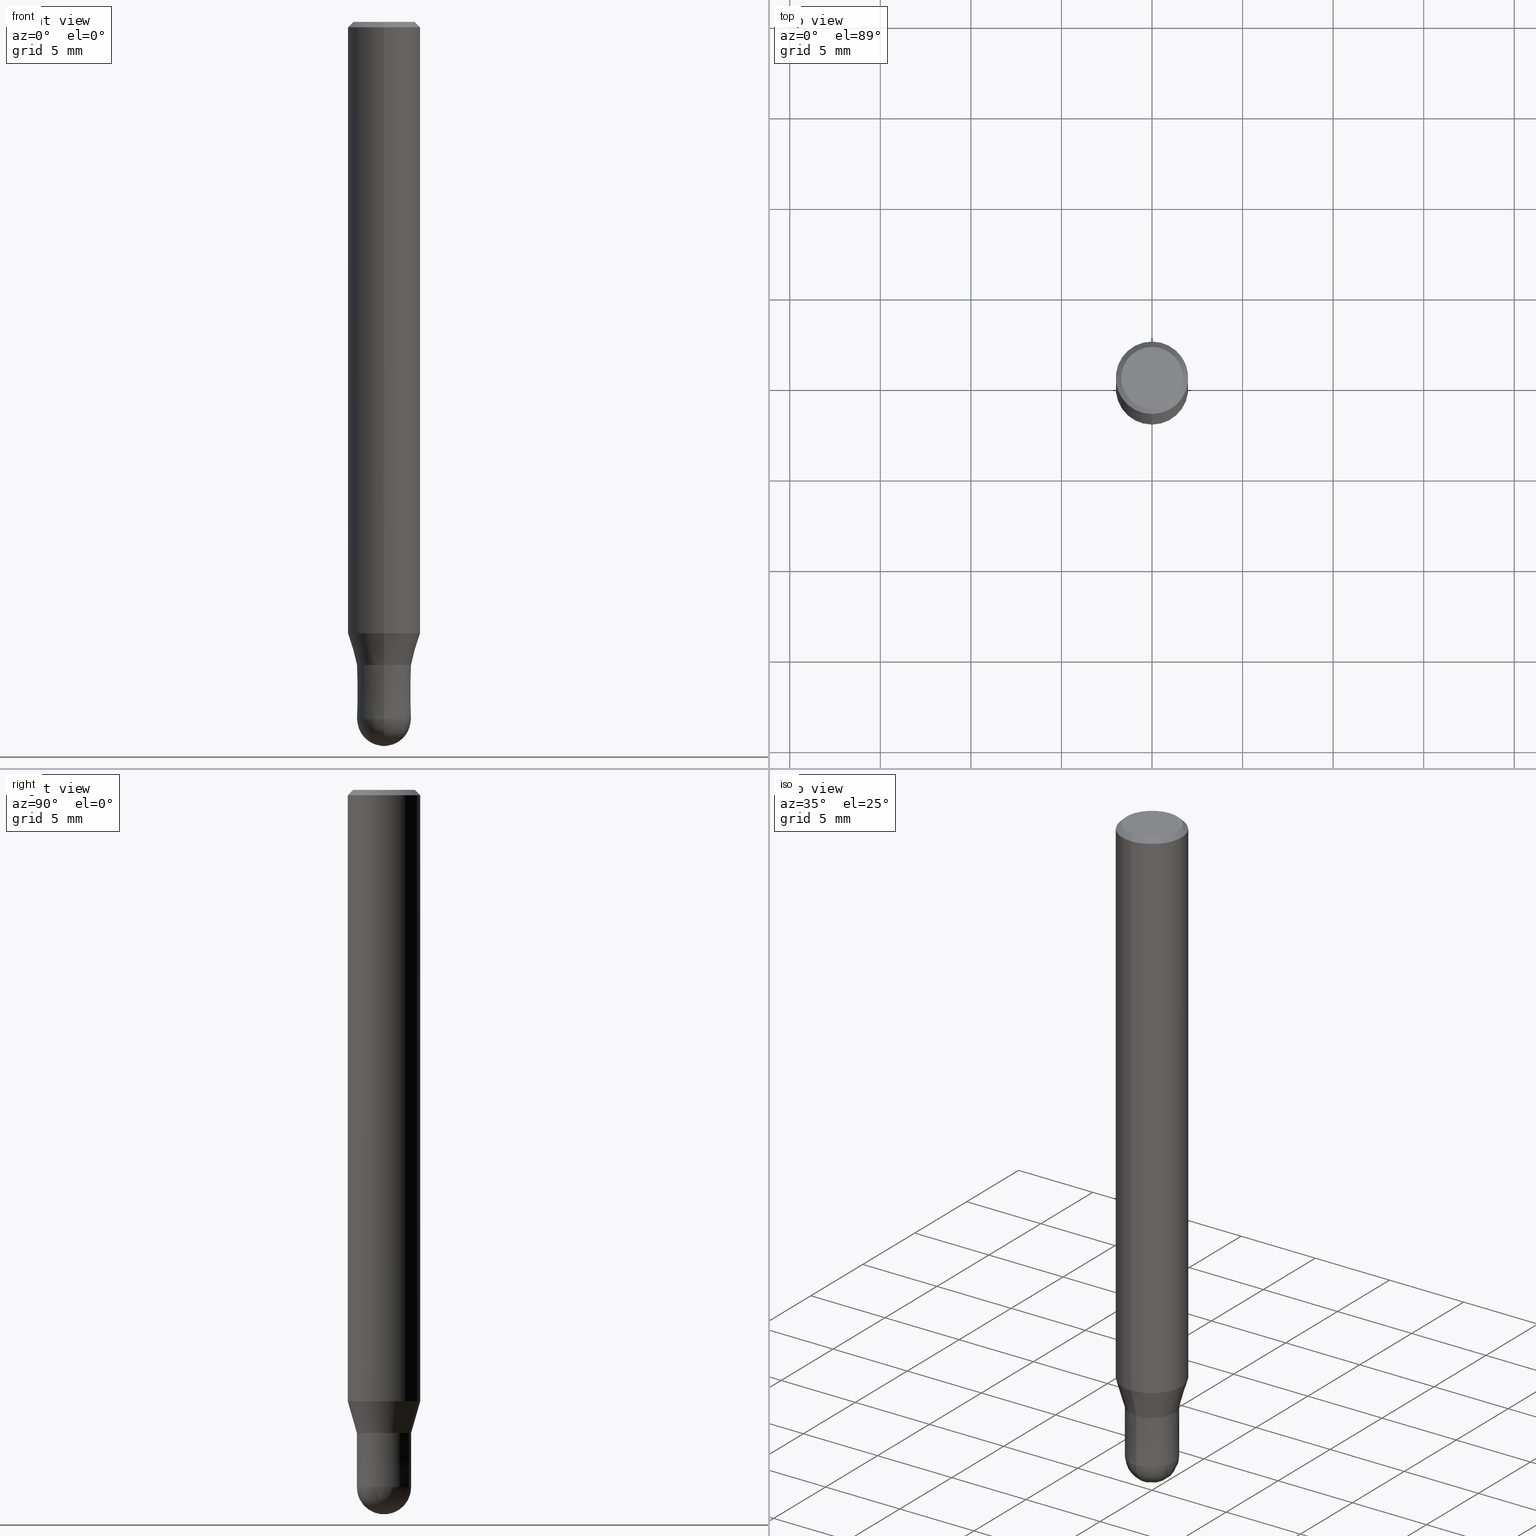
[diagram: canonical four-view strip — front | top / right | iso, engineering-drawing reading convention]
A machine part, canonical four-view strip (front | top / right | iso — engineering-drawing reading convention). The complete STEP part file that produces these views, byte-faithful:
ISO-10303-21;
HEADER;
FILE_DESCRIPTION(('no description'),'unknown implementation level');
FILE_NAME('HFB4030-0450S-Huellk.stp','  ',('CIMSOURCE GmbH'),('CADClick - KiM GmbH - www.kimweb.de'),'unknown preprocess','ACIS','unknown authorization');
FILE_SCHEMA(('automotive_design'));
ENDSEC;
DATA;
#1=MECHANICAL_DESIGN_GEOMETRIC_PRESENTATION_REPRESENTATION(' ',(#14,#15,#16,#17,#18,#19,#20,#21,#22,#23,#24,#25,#26,#27,#28,#29,#30,#31,#32,#33,#34,#35,#36,#37,#38,#39,#40,#41,#42,#43,#44,#45,#46,#47,#48,#49,#50,#51,#52,#53,#54,#55,#56,#57,#58,#59,#60,#61,#62,#63,#64,#65,#66),#10);
#2=PRODUCT_DEFINITION_CONTEXT('',#67,'design');
#3=APPLICATION_PROTOCOL_DEFINITION('INTERNATIONAL STANDARD','automotive_design',1994,#67);
#4=PRODUCT_CATEGORY_RELATIONSHIP('NONE','NONE',#68,#69);
#5=SHAPE_DEFINITION_REPRESENTATION(#70,#71);
#6=PRODUCT_DEFINITION_CONTEXT('',#72,'design');
#7=APPLICATION_PROTOCOL_DEFINITION('INTERNATIONAL STANDARD','automotive_design',1994,#72);
#8=PRODUCT_CATEGORY_RELATIONSHIP('NONE','NONE',#73,#74);
#9=SHAPE_DEFINITION_REPRESENTATION(#75,#76);
#10= (GEOMETRIC_REPRESENTATION_CONTEXT(3)GLOBAL_UNCERTAINTY_ASSIGNED_CONTEXT((#79))GLOBAL_UNIT_ASSIGNED_CONTEXT((#81,#82,#83))REPRESENTATION_CONTEXT('NONE','WORKSPACE'));
#14=STYLED_ITEM('',(#85),#86);
#15=STYLED_ITEM('',(#87),#88);
#16=STYLED_ITEM('',(#89),#90);
#17=STYLED_ITEM('',(#91),#92);
#18=STYLED_ITEM('',(#93),#94);
#19=STYLED_ITEM('',(#95),#96);
#20=STYLED_ITEM('',(#97),#98);
#21=STYLED_ITEM('',(#99),#100);
#22=STYLED_ITEM('',(#101),#102);
#23=STYLED_ITEM('',(#103),#104);
#24=STYLED_ITEM('',(#105),#106);
#25=STYLED_ITEM('',(#107),#108);
#26=STYLED_ITEM('',(#109),#110);
#27=STYLED_ITEM('',(#111),#112);
#28=STYLED_ITEM('',(#113),#114);
#29=STYLED_ITEM('',(#115),#116);
#30=STYLED_ITEM('',(#117),#118);
#31=STYLED_ITEM('',(#119),#120);
#32=STYLED_ITEM('',(#121),#122);
#33=STYLED_ITEM('',(#123),#124);
#34=STYLED_ITEM('',(#125),#126);
#35=STYLED_ITEM('',(#127),#128);
#36=STYLED_ITEM('',(#129),#130);
#37=STYLED_ITEM('',(#131),#132);
#38=STYLED_ITEM('',(#133),#134);
#39=STYLED_ITEM('',(#135),#136);
#40=STYLED_ITEM('',(#137),#138);
#41=STYLED_ITEM('',(#139),#140);
#42=STYLED_ITEM('',(#141),#142);
#43=STYLED_ITEM('',(#143),#144);
#44=STYLED_ITEM('',(#145),#146);
#45=STYLED_ITEM('',(#147),#148);
#46=STYLED_ITEM('',(#149),#150);
#47=STYLED_ITEM('',(#151),#152);
#48=STYLED_ITEM('',(#153),#154);
#49=STYLED_ITEM('',(#155),#156);
#50=STYLED_ITEM('',(#157),#158);
#51=STYLED_ITEM('',(#159),#160);
#52=STYLED_ITEM('',(#161),#162);
#53=STYLED_ITEM('',(#163),#164);
#54=STYLED_ITEM('',(#165),#166);
#55=STYLED_ITEM('',(#167),#168);
#56=STYLED_ITEM('',(#169),#170);
#57=STYLED_ITEM('',(#171),#172);
#58=STYLED_ITEM('',(#173),#174);
#59=STYLED_ITEM('',(#175),#176);
#60=STYLED_ITEM('',(#177),#178);
#61=STYLED_ITEM('',(#179),#180);
#62=STYLED_ITEM('',(#181),#182);
#63=STYLED_ITEM('',(#183),#184);
#64=STYLED_ITEM('',(#185),#186);
#65=STYLED_ITEM('',(#187),#188);
#66=STYLED_ITEM('',(#189),#190);
#67=APPLICATION_CONTEXT(' ');
#68=PRODUCT_CATEGORY('part','NONE');
#69=PRODUCT_RELATED_PRODUCT_CATEGORY('detail',' ',(#191));
#70=PRODUCT_DEFINITION_SHAPE('NONE','NONE',#192);
#71=ADVANCED_BREP_SHAPE_REPRESENTATION('1',(#144,#193),#10);
#72=APPLICATION_CONTEXT(' ');
#73=PRODUCT_CATEGORY('part','NONE');
#74=PRODUCT_RELATED_PRODUCT_CATEGORY('detail',' ',(#194));
#75=PRODUCT_DEFINITION_SHAPE('NONE','NONE',#195);
#76=ADVANCED_BREP_SHAPE_REPRESENTATION('2',(#166,#196),#10);
#79=UNCERTAINTY_MEASURE_WITH_UNIT(LENGTH_MEASURE(1.0E-006),#81,'','');
#81= (CONVERSION_BASED_UNIT('MILLIMETRE',#199)LENGTH_UNIT()NAMED_UNIT(#202));
#82= (NAMED_UNIT(#204)PLANE_ANGLE_UNIT()SI_UNIT($,.RADIAN.));
#83= (NAMED_UNIT(#204)SOLID_ANGLE_UNIT()SI_UNIT($,.STERADIAN.));
#85=PRESENTATION_STYLE_ASSIGNMENT((#210));
#86=EDGE_CURVE('',#94,#186,#211,.T.);
#87=PRESENTATION_STYLE_ASSIGNMENT((#212));
#88=VERTEX_POINT('',#213);
#89=PRESENTATION_STYLE_ASSIGNMENT((#214));
#90=EDGE_CURVE('',#148,#98,#215,.T.);
#91=PRESENTATION_STYLE_ASSIGNMENT((#216));
#92=VERTEX_POINT('',#217);
#93=PRESENTATION_STYLE_ASSIGNMENT((#218));
#94=VERTEX_POINT('',#219);
#95=PRESENTATION_STYLE_ASSIGNMENT((#220));
#96=VERTEX_POINT('',#221);
#97=PRESENTATION_STYLE_ASSIGNMENT((#222));
#98=VERTEX_POINT('',#223);
#99=PRESENTATION_STYLE_ASSIGNMENT((#224));
#100=EDGE_CURVE('',#92,#156,#225,.T.);
#101=PRESENTATION_STYLE_ASSIGNMENT((#226));
#102=ADVANCED_FACE('',(#227),#228,.T.);
#103=PRESENTATION_STYLE_ASSIGNMENT((#229));
#104=ADVANCED_FACE('',(#230),#231,.T.);
#105=PRESENTATION_STYLE_ASSIGNMENT((#232));
#106=ADVANCED_FACE('',(#233),#234,.T.);
#107=PRESENTATION_STYLE_ASSIGNMENT((#235));
#108=EDGE_CURVE('',#88,#138,#236,.T.);
#109=PRESENTATION_STYLE_ASSIGNMENT((#237));
#110=ADVANCED_FACE('',(#238),#239,.T.);
#111=PRESENTATION_STYLE_ASSIGNMENT((#240));
#112=EDGE_CURVE('',#154,#150,#241,.T.);
#113=PRESENTATION_STYLE_ASSIGNMENT((#242));
#114=EDGE_CURVE('',#98,#154,#243,.T.);
#115=PRESENTATION_STYLE_ASSIGNMENT((#244));
#116=ADVANCED_FACE('',(#245),#246,.T.);
#117=PRESENTATION_STYLE_ASSIGNMENT((#247));
#118=EDGE_CURVE('',#88,#138,#248,.T.);
#119=PRESENTATION_STYLE_ASSIGNMENT((#249));
#120=EDGE_CURVE('',#158,#138,#250,.T.);
#121=PRESENTATION_STYLE_ASSIGNMENT((#251));
#122=EDGE_CURVE('',#190,#158,#252,.T.);
#123=PRESENTATION_STYLE_ASSIGNMENT((#253));
#124=EDGE_CURVE('',#126,#94,#254,.T.);
#125=PRESENTATION_STYLE_ASSIGNMENT((#255));
#126=VERTEX_POINT('',#256);
#127=PRESENTATION_STYLE_ASSIGNMENT((#257));
#128=ADVANCED_FACE('',(#258),#259,.T.);
#129=PRESENTATION_STYLE_ASSIGNMENT((#260));
#130=EDGE_CURVE('',#186,#94,#261,.T.);
#131=PRESENTATION_STYLE_ASSIGNMENT((#262));
#132=EDGE_CURVE('',#96,#156,#263,.T.);
#133=PRESENTATION_STYLE_ASSIGNMENT((#264));
#134=EDGE_CURVE('',#156,#92,#265,.T.);
#135=PRESENTATION_STYLE_ASSIGNMENT((#266));
#136=ADVANCED_FACE('',(#267),#268,.T.);
#137=PRESENTATION_STYLE_ASSIGNMENT((#269));
#138=VERTEX_POINT('',#270);
#139=PRESENTATION_STYLE_ASSIGNMENT((#271));
#140=ADVANCED_FACE('',(#272),#273,.T.);
#141=PRESENTATION_STYLE_ASSIGNMENT((#274));
#142=ADVANCED_FACE('',(#275),#276,.T.);
#143=PRESENTATION_STYLE_ASSIGNMENT((#277));
#144=MANIFOLD_SOLID_BREP('1',#278);
#145=PRESENTATION_STYLE_ASSIGNMENT((#279));
#146=ADVANCED_FACE('',(#280),#281,.T.);
#147=PRESENTATION_STYLE_ASSIGNMENT((#282));
#148=VERTEX_POINT('',#283);
#149=PRESENTATION_STYLE_ASSIGNMENT((#284));
#150=VERTEX_POINT('',#285);
#151=PRESENTATION_STYLE_ASSIGNMENT((#286));
#152=ADVANCED_FACE('',(#287,#288),#289,.T.);
#153=PRESENTATION_STYLE_ASSIGNMENT((#290));
#154=VERTEX_POINT('',#291);
#155=PRESENTATION_STYLE_ASSIGNMENT((#292));
#156=VERTEX_POINT('',#293);
#157=PRESENTATION_STYLE_ASSIGNMENT((#294));
#158=VERTEX_POINT('',#295);
#159=PRESENTATION_STYLE_ASSIGNMENT((#296));
#160=EDGE_CURVE('',#138,#88,#297,.T.);
#161=PRESENTATION_STYLE_ASSIGNMENT((#298));
#162=EDGE_CURVE('',#96,#126,#299,.T.);
#163=PRESENTATION_STYLE_ASSIGNMENT((#300));
#164=EDGE_CURVE('',#186,#96,#301,.T.);
#165=PRESENTATION_STYLE_ASSIGNMENT((#302));
#166=MANIFOLD_SOLID_BREP('2',#303);
#167=PRESENTATION_STYLE_ASSIGNMENT((#304));
#168=EDGE_CURVE('',#92,#126,#305,.T.);
#169=PRESENTATION_STYLE_ASSIGNMENT((#306));
#170=ADVANCED_FACE('',(#307),#308,.T.);
#171=PRESENTATION_STYLE_ASSIGNMENT((#309));
#172=ADVANCED_FACE('',(#310),#311,.T.);
#173=PRESENTATION_STYLE_ASSIGNMENT((#312));
#174=EDGE_CURVE('',#158,#190,#313,.T.);
#175=PRESENTATION_STYLE_ASSIGNMENT((#314));
#176=EDGE_CURVE('',#150,#148,#315,.T.);
#177=PRESENTATION_STYLE_ASSIGNMENT((#316));
#178=ADVANCED_FACE('',(#317),#318,.T.);
#179=PRESENTATION_STYLE_ASSIGNMENT((#319));
#180=EDGE_CURVE('',#88,#190,#320,.T.);
#181=PRESENTATION_STYLE_ASSIGNMENT((#321));
#182=EDGE_CURVE('',#154,#98,#322,.T.);
#183=PRESENTATION_STYLE_ASSIGNMENT((#323));
#184=EDGE_CURVE('',#148,#150,#324,.T.);
#185=PRESENTATION_STYLE_ASSIGNMENT((#325));
#186=VERTEX_POINT('',#326);
#187=PRESENTATION_STYLE_ASSIGNMENT((#327));
#188=EDGE_CURVE('',#126,#96,#328,.T.);
#189=PRESENTATION_STYLE_ASSIGNMENT((#329));
#190=VERTEX_POINT('',#330);
#191=PRODUCT('1','1','PART-1-DESC',(#331));
#192=PRODUCT_DEFINITION('NONE','NONE',#332,#2);
#193=AXIS2_PLACEMENT_3D('',#333,#334,#335);
#194=PRODUCT('2','2','PART-2-DESC',(#336));
#195=PRODUCT_DEFINITION('NONE','NONE',#337,#6);
#196=AXIS2_PLACEMENT_3D('',#338,#339,#340);
#199=LENGTH_MEASURE_WITH_UNIT(LENGTH_MEASURE(1.0),#341);
#202=DIMENSIONAL_EXPONENTS(1.0,0.0,0.0,0.0,0.0,0.0,0.0);
#204=DIMENSIONAL_EXPONENTS(0.0,0.0,0.0,0.0,0.0,0.0,0.0);
#210=CURVE_STYLE('',#342,POSITIVE_LENGTH_MEASURE(1.0E-006),#343);
#211=CIRCLE('',#344,1.7);
#212=POINT_STYLE(' ',#345,POSITIVE_LENGTH_MEASURE(1.0E-006),#346);
#213=CARTESIAN_POINT('',(1.83690953073357E-016,-1.5,-38.5));
#214=CURVE_STYLE('',#347,POSITIVE_LENGTH_MEASURE(1.0E-006),#348);
#215=LINE('',#349,#350);
#216=POINT_STYLE(' ',#351,POSITIVE_LENGTH_MEASURE(1.0E-006),#352);
#217=CARTESIAN_POINT('',(2.44921270764475E-016,-2.0,-33.756));
#218=POINT_STYLE(' ',#353,POSITIVE_LENGTH_MEASURE(1.0E-006),#354);
#219=CARTESIAN_POINT('',(2.08183080149804E-016,-1.7,0.0));
#220=POINT_STYLE(' ',#355,POSITIVE_LENGTH_MEASURE(1.0E-006),#356);
#221=CARTESIAN_POINT('',(0.0,2.0,-0.299999999999997));
#222=POINT_STYLE(' ',#357,POSITIVE_LENGTH_MEASURE(1.0E-006),#358);
#223=CARTESIAN_POINT('',(0.0,1.49995,-35.5));
#224=CURVE_STYLE('',#359,POSITIVE_LENGTH_MEASURE(1.0E-006),#360);
#225=CIRCLE('',#361,2.0);
#226=SURFACE_STYLE_USAGE(.BOTH.,#362);
#227=FACE_OUTER_BOUND('',#363,.T.);
#228=SPHERICAL_SURFACE('',#364,1.5);
#229=SURFACE_STYLE_USAGE(.BOTH.,#365);
#230=FACE_OUTER_BOUND('',#366,.T.);
#231=CONICAL_SURFACE('',#367,1.74995,0.279208199033747);
#232=SURFACE_STYLE_USAGE(.BOTH.,#368);
#233=FACE_OUTER_BOUND('',#369,.T.);
#234=PLANE('',#370);
#235=CURVE_STYLE('',#371,POSITIVE_LENGTH_MEASURE(1.0E-006),#372);
#236=CIRCLE('',#373,1.5);
#237=SURFACE_STYLE_USAGE(.BOTH.,#374);
#238=FACE_OUTER_BOUND('',#375,.T.);
#239=CONICAL_SURFACE('',#376,1.49995,3.3333333321058E-005);
#240=CURVE_STYLE('',#377,POSITIVE_LENGTH_MEASURE(1.0E-006),#378);
#241=LINE('',#379,#380);
#242=CURVE_STYLE('',#381,POSITIVE_LENGTH_MEASURE(1.0E-006),#382);
#243=CIRCLE('',#383,1.49995);
#244=SURFACE_STYLE_USAGE(.BOTH.,#384);
#245=FACE_OUTER_BOUND('',#385,.T.);
#246=CONICAL_SURFACE('',#386,1.74995,0.279208199033747);
#247=CURVE_STYLE('',#387,POSITIVE_LENGTH_MEASURE(1.0E-006),#388);
#248=CIRCLE('',#389,1.5);
#249=CURVE_STYLE('',#390,POSITIVE_LENGTH_MEASURE(1.0E-006),#391);
#250=LINE('',#392,#393);
#251=CURVE_STYLE('',#394,POSITIVE_LENGTH_MEASURE(1.0E-006),#395);
#252=CIRCLE('',#396,1.4999);
#253=CURVE_STYLE('',#397,POSITIVE_LENGTH_MEASURE(1.0E-006),#398);
#254=LINE('',#399,#400);
#255=POINT_STYLE(' ',#401,POSITIVE_LENGTH_MEASURE(1.0E-006),#402);
#256=CARTESIAN_POINT('',(2.44921270764475E-016,-2.0,-0.299999999999997));
#257=SURFACE_STYLE_USAGE(.BOTH.,#403);
#258=FACE_OUTER_BOUND('',#404,.T.);
#259=SPHERICAL_SURFACE('',#405,1.5);
#260=CURVE_STYLE('',#406,POSITIVE_LENGTH_MEASURE(1.0E-006),#407);
#261=CIRCLE('',#408,1.7);
#262=CURVE_STYLE('',#409,POSITIVE_LENGTH_MEASURE(1.0E-006),#410);
#263=LINE('',#411,#412);
#264=CURVE_STYLE('',#413,POSITIVE_LENGTH_MEASURE(1.0E-006),#414);
#265=CIRCLE('',#415,2.0);
#266=SURFACE_STYLE_USAGE(.BOTH.,#416);
#267=FACE_OUTER_BOUND('',#417,.T.);
#268=PLANE('',#418);
#269=POINT_STYLE(' ',#419,POSITIVE_LENGTH_MEASURE(1.0E-006),#420);
#270=CARTESIAN_POINT('',(0.0,1.5,-38.5));
#271=SURFACE_STYLE_USAGE(.BOTH.,#421);
#272=FACE_OUTER_BOUND('',#422,.T.);
#273=CYLINDRICAL_SURFACE('',#423,2.0);
#274=SURFACE_STYLE_USAGE(.BOTH.,#424);
#275=FACE_OUTER_BOUND('',#425,.T.);
#276=CYLINDRICAL_SURFACE('',#426,2.0);
#277=SURFACE_STYLE_USAGE(.BOTH.,#427);
#278=CLOSED_SHELL('',(#104,#140,#170,#152,#106,#172,#142,#116,#136));
#279=SURFACE_STYLE_USAGE(.BOTH.,#428);
#280=FACE_OUTER_BOUND('',#429,.T.);
#281=PLANE('',#430);
#282=POINT_STYLE(' ',#431,POSITIVE_LENGTH_MEASURE(1.0E-006),#432);
#283=CARTESIAN_POINT('',(0.0,1.99995,-33.756));
#284=POINT_STYLE(' ',#433,POSITIVE_LENGTH_MEASURE(1.0E-006),#434);
#285=CARTESIAN_POINT('',(2.44915147732706E-016,-1.99995,-33.756));
#286=SURFACE_STYLE_USAGE(.BOTH.,#435);
#287=FACE_OUTER_BOUND('',#436,.T.);
#288=FACE_BOUND('',#437,.T.);
#289=PLANE('',#438);
#290=POINT_STYLE(' ',#439,POSITIVE_LENGTH_MEASURE(1.0E-006),#440);
#291=CARTESIAN_POINT('',(1.83684830041587E-016,-1.49995,-35.5));
#292=POINT_STYLE(' ',#441,POSITIVE_LENGTH_MEASURE(1.0E-006),#442);
#293=CARTESIAN_POINT('',(0.0,2.0,-33.756));
#294=POINT_STYLE(' ',#443,POSITIVE_LENGTH_MEASURE(1.0E-006),#444);
#295=CARTESIAN_POINT('',(0.0,1.4999,-35.5));
#296=CURVE_STYLE('',#445,POSITIVE_LENGTH_MEASURE(1.0E-006),#446);
#297=CIRCLE('',#447,1.5);
#298=CURVE_STYLE('',#448,POSITIVE_LENGTH_MEASURE(1.0E-006),#449);
#299=CIRCLE('',#450,2.0);
#300=CURVE_STYLE('',#451,POSITIVE_LENGTH_MEASURE(1.0E-006),#452);
#301=LINE('',#453,#454);
#302=SURFACE_STYLE_USAGE(.BOTH.,#455);
#303=CLOSED_SHELL('',(#128,#178,#146,#110,#102));
#304=CURVE_STYLE('',#456,POSITIVE_LENGTH_MEASURE(1.0E-006),#457);
#305=LINE('',#458,#459);
#306=SURFACE_STYLE_USAGE(.BOTH.,#460);
#307=FACE_OUTER_BOUND('',#461,.T.);
#308=CONICAL_SURFACE('',#462,1.85,0.785398163397453);
#309=SURFACE_STYLE_USAGE(.BOTH.,#463);
#310=FACE_OUTER_BOUND('',#464,.T.);
#311=CONICAL_SURFACE('',#465,1.85,0.785398163397453);
#312=CURVE_STYLE('',#466,POSITIVE_LENGTH_MEASURE(1.0E-006),#467);
#313=CIRCLE('',#468,1.4999);
#314=CURVE_STYLE('',#469,POSITIVE_LENGTH_MEASURE(1.0E-006),#470);
#315=CIRCLE('',#471,1.99995);
#316=SURFACE_STYLE_USAGE(.BOTH.,#472);
#317=FACE_OUTER_BOUND('',#473,.T.);
#318=CONICAL_SURFACE('',#474,1.49995,3.3333333321058E-005);
#319=CURVE_STYLE('',#475,POSITIVE_LENGTH_MEASURE(1.0E-006),#476);
#320=LINE('',#477,#478);
#321=CURVE_STYLE('',#479,POSITIVE_LENGTH_MEASURE(1.0E-006),#480);
#322=CIRCLE('',#481,1.49995);
#323=CURVE_STYLE('',#482,POSITIVE_LENGTH_MEASURE(1.0E-006),#483);
#324=CIRCLE('',#484,1.99995);
#325=POINT_STYLE(' ',#485,POSITIVE_LENGTH_MEASURE(1.0E-006),#486);
#326=CARTESIAN_POINT('',(0.0,1.7,0.0));
#327=CURVE_STYLE('',#487,POSITIVE_LENGTH_MEASURE(1.0E-006),#488);
#328=CIRCLE('',#489,2.0);
#329=POINT_STYLE(' ',#490,POSITIVE_LENGTH_MEASURE(1.0E-006),#491);
#330=CARTESIAN_POINT('',(1.83678707009818E-016,-1.4999,-35.5));
#331=PRODUCT_CONTEXT('',#67,'mechanical');
#332=PRODUCT_DEFINITION_FORMATION_WITH_SPECIFIED_SOURCE(' ','NONE',#191,.NOT_KNOWN.);
#333=CARTESIAN_POINT('',(0.0,0.0,0.0));
#334=DIRECTION('',(0.0,0.0,1.0));
#335=DIRECTION('',(1.0,0.0,0.0));
#336=PRODUCT_CONTEXT('',#72,'mechanical');
#337=PRODUCT_DEFINITION_FORMATION_WITH_SPECIFIED_SOURCE(' ','NONE',#194,.NOT_KNOWN.);
#338=CARTESIAN_POINT('',(0.0,0.0,0.0));
#339=DIRECTION('',(0.0,0.0,1.0));
#340=DIRECTION('',(1.0,0.0,0.0));
#341= (NAMED_UNIT(#202)LENGTH_UNIT()SI_UNIT(.MILLI.,.METRE.));
#342=DRAUGHTING_PRE_DEFINED_CURVE_FONT('continuous');
#343=COLOUR_RGB('',0.498039215803146,0.498039215803146,0.498039215803146);
#344=AXIS2_PLACEMENT_3D('',#493,#494,#495);
#345=PRE_DEFINED_MARKER('');
#346=COLOUR_RGB('',0.800000011920929,0.800000011920929,0.800000011920929);
#347=DRAUGHTING_PRE_DEFINED_CURVE_FONT('continuous');
#348=COLOUR_RGB('',0.498039215803146,0.498039215803146,0.498039215803146);
#349=CARTESIAN_POINT('',(-2.14299988887147E-016,1.74995,-34.628));
#350=VECTOR('',#496,1.0);
#351=PRE_DEFINED_MARKER('');
#352=COLOUR_RGB('',0.498039215803146,0.498039215803146,0.498039215803146);
#353=PRE_DEFINED_MARKER('');
#354=COLOUR_RGB('',0.498039215803146,0.498039215803146,0.498039215803146);
#355=PRE_DEFINED_MARKER('');
#356=COLOUR_RGB('',0.498039215803146,0.498039215803146,0.498039215803146);
#357=PRE_DEFINED_MARKER('');
#358=COLOUR_RGB('',0.498039215803146,0.498039215803146,0.498039215803146);
#359=DRAUGHTING_PRE_DEFINED_CURVE_FONT('continuous');
#360=COLOUR_RGB('',0.498039215803146,0.498039215803146,0.498039215803146);
#361=AXIS2_PLACEMENT_3D('',#497,#498,#499);
#362=SURFACE_SIDE_STYLE('',(#500));
#363=EDGE_LOOP('',(#501,#502));
#364=AXIS2_PLACEMENT_3D('',#503,#504,#505);
#365=SURFACE_SIDE_STYLE('',(#506));
#366=EDGE_LOOP('',(#507,#508,#509,#510));
#367=AXIS2_PLACEMENT_3D('',#511,#512,#513);
#368=SURFACE_SIDE_STYLE('',(#514));
#369=EDGE_LOOP('',(#515,#516));
#370=AXIS2_PLACEMENT_3D('',#517,#518,#519);
#371=DRAUGHTING_PRE_DEFINED_CURVE_FONT('continuous');
#372=COLOUR_RGB('',0.800000011920929,0.800000011920929,0.800000011920929);
#373=AXIS2_PLACEMENT_3D('',#520,#521,#522);
#374=SURFACE_SIDE_STYLE('',(#523));
#375=EDGE_LOOP('',(#524,#525,#526,#527));
#376=AXIS2_PLACEMENT_3D('',#528,#529,#530);
#377=DRAUGHTING_PRE_DEFINED_CURVE_FONT('continuous');
#378=COLOUR_RGB('',0.498039215803146,0.498039215803146,0.498039215803146);
#379=CARTESIAN_POINT('',(2.14299988887147E-016,-1.74995,-34.628));
#380=VECTOR('',#531,1.0);
#381=DRAUGHTING_PRE_DEFINED_CURVE_FONT('continuous');
#382=COLOUR_RGB('',0.498039215803146,0.498039215803146,0.498039215803146);
#383=AXIS2_PLACEMENT_3D('',#532,#533,#534);
#384=SURFACE_SIDE_STYLE('',(#535));
#385=EDGE_LOOP('',(#536,#537,#538,#539));
#386=AXIS2_PLACEMENT_3D('',#540,#541,#542);
#387=DRAUGHTING_PRE_DEFINED_CURVE_FONT('continuous');
#388=COLOUR_RGB('',0.800000011920929,0.800000011920929,0.800000011920929);
#389=AXIS2_PLACEMENT_3D('',#543,#544,#545);
#390=DRAUGHTING_PRE_DEFINED_CURVE_FONT('continuous');
#391=COLOUR_RGB('',0.800000011920929,0.800000011920929,0.800000011920929);
#392=CARTESIAN_POINT('',(-1.83684830041587E-016,1.49995,-37.0));
#393=VECTOR('',#546,1.0);
#394=DRAUGHTING_PRE_DEFINED_CURVE_FONT('continuous');
#395=COLOUR_RGB('',0.800000011920929,0.800000011920929,0.800000011920929);
#396=AXIS2_PLACEMENT_3D('',#547,#548,#549);
#397=DRAUGHTING_PRE_DEFINED_CURVE_FONT('continuous');
#398=COLOUR_RGB('',0.498039215803146,0.498039215803146,0.498039215803146);
#399=CARTESIAN_POINT('',(2.2655217545714E-016,-1.85,-0.149999999999999));
#400=VECTOR('',#550,1.0);
#401=PRE_DEFINED_MARKER('');
#402=COLOUR_RGB('',0.498039215803146,0.498039215803146,0.498039215803146);
#403=SURFACE_SIDE_STYLE('',(#551));
#404=EDGE_LOOP('',(#552,#553));
#405=AXIS2_PLACEMENT_3D('',#554,#555,#556);
#406=DRAUGHTING_PRE_DEFINED_CURVE_FONT('continuous');
#407=COLOUR_RGB('',0.498039215803146,0.498039215803146,0.498039215803146);
#408=AXIS2_PLACEMENT_3D('',#557,#558,#559);
#409=DRAUGHTING_PRE_DEFINED_CURVE_FONT('continuous');
#410=COLOUR_RGB('',0.498039215803146,0.498039215803146,0.498039215803146);
#411=CARTESIAN_POINT('',(-2.44921270764475E-016,2.0,-17.028));
#412=VECTOR('',#560,1.0);
#413=DRAUGHTING_PRE_DEFINED_CURVE_FONT('continuous');
#414=COLOUR_RGB('',0.498039215803146,0.498039215803146,0.498039215803146);
#415=AXIS2_PLACEMENT_3D('',#561,#562,#563);
#416=SURFACE_SIDE_STYLE('',(#564));
#417=EDGE_LOOP('',(#565,#566));
#418=AXIS2_PLACEMENT_3D('',#567,#568,#569);
#419=PRE_DEFINED_MARKER('');
#420=COLOUR_RGB('',0.800000011920929,0.800000011920929,0.800000011920929);
#421=SURFACE_SIDE_STYLE('',(#570));
#422=EDGE_LOOP('',(#571,#572,#573,#574));
#423=AXIS2_PLACEMENT_3D('',#575,#576,#577);
#424=SURFACE_SIDE_STYLE('',(#578));
#425=EDGE_LOOP('',(#579,#580,#581,#582));
#426=AXIS2_PLACEMENT_3D('',#583,#584,#585);
#427=SURFACE_SIDE_STYLE('',(#586));
#428=SURFACE_SIDE_STYLE('',(#587));
#429=EDGE_LOOP('',(#588,#589));
#430=AXIS2_PLACEMENT_3D('',#590,#591,#592);
#431=PRE_DEFINED_MARKER('');
#432=COLOUR_RGB('',0.498039215803146,0.498039215803146,0.498039215803146);
#433=PRE_DEFINED_MARKER('');
#434=COLOUR_RGB('',0.498039215803146,0.498039215803146,0.498039215803146);
#435=SURFACE_SIDE_STYLE('',(#593));
#436=EDGE_LOOP('',(#594,#595));
#437=EDGE_LOOP('',(#596,#597));
#438=AXIS2_PLACEMENT_3D('',#598,#599,#600);
#439=PRE_DEFINED_MARKER('');
#440=COLOUR_RGB('',0.498039215803146,0.498039215803146,0.498039215803146);
#441=PRE_DEFINED_MARKER('');
#442=COLOUR_RGB('',0.498039215803146,0.498039215803146,0.498039215803146);
#443=PRE_DEFINED_MARKER('');
#444=COLOUR_RGB('',0.800000011920929,0.800000011920929,0.800000011920929);
#445=DRAUGHTING_PRE_DEFINED_CURVE_FONT('continuous');
#446=COLOUR_RGB('',0.800000011920929,0.800000011920929,0.800000011920929);
#447=AXIS2_PLACEMENT_3D('',#601,#602,#603);
#448=DRAUGHTING_PRE_DEFINED_CURVE_FONT('continuous');
#449=COLOUR_RGB('',0.498039215803146,0.498039215803146,0.498039215803146);
#450=AXIS2_PLACEMENT_3D('',#604,#605,#606);
#451=DRAUGHTING_PRE_DEFINED_CURVE_FONT('continuous');
#452=COLOUR_RGB('',0.498039215803146,0.498039215803146,0.498039215803146);
#453=CARTESIAN_POINT('',(-2.2655217545714E-016,1.85,-0.149999999999999));
#454=VECTOR('',#607,1.0);
#455=SURFACE_SIDE_STYLE('',(#608));
#456=DRAUGHTING_PRE_DEFINED_CURVE_FONT('continuous');
#457=COLOUR_RGB('',0.498039215803146,0.498039215803146,0.498039215803146);
#458=CARTESIAN_POINT('',(2.44921270764475E-016,-2.0,-17.028));
#459=VECTOR('',#609,1.0);
#460=SURFACE_SIDE_STYLE('',(#610));
#461=EDGE_LOOP('',(#611,#612,#613,#614));
#462=AXIS2_PLACEMENT_3D('',#615,#616,#617);
#463=SURFACE_SIDE_STYLE('',(#618));
#464=EDGE_LOOP('',(#619,#620,#621,#622));
#465=AXIS2_PLACEMENT_3D('',#623,#624,#625);
#466=DRAUGHTING_PRE_DEFINED_CURVE_FONT('continuous');
#467=COLOUR_RGB('',0.800000011920929,0.800000011920929,0.800000011920929);
#468=AXIS2_PLACEMENT_3D('',#626,#627,#628);
#469=DRAUGHTING_PRE_DEFINED_CURVE_FONT('continuous');
#470=COLOUR_RGB('',0.498039215803146,0.498039215803146,0.498039215803146);
#471=AXIS2_PLACEMENT_3D('',#629,#630,#631);
#472=SURFACE_SIDE_STYLE('',(#632));
#473=EDGE_LOOP('',(#633,#634,#635,#636));
#474=AXIS2_PLACEMENT_3D('',#637,#638,#639);
#475=DRAUGHTING_PRE_DEFINED_CURVE_FONT('continuous');
#476=COLOUR_RGB('',0.800000011920929,0.800000011920929,0.800000011920929);
#477=CARTESIAN_POINT('',(1.83684830041587E-016,-1.49995,-37.0));
#478=VECTOR('',#640,1.0);
#479=DRAUGHTING_PRE_DEFINED_CURVE_FONT('continuous');
#480=COLOUR_RGB('',0.498039215803146,0.498039215803146,0.498039215803146);
#481=AXIS2_PLACEMENT_3D('',#641,#642,#643);
#482=DRAUGHTING_PRE_DEFINED_CURVE_FONT('continuous');
#483=COLOUR_RGB('',0.498039215803146,0.498039215803146,0.498039215803146);
#484=AXIS2_PLACEMENT_3D('',#644,#645,#646);
#485=PRE_DEFINED_MARKER('');
#486=COLOUR_RGB('',0.498039215803146,0.498039215803146,0.498039215803146);
#487=DRAUGHTING_PRE_DEFINED_CURVE_FONT('continuous');
#488=COLOUR_RGB('',0.498039215803146,0.498039215803146,0.498039215803146);
#489=AXIS2_PLACEMENT_3D('',#647,#648,#649);
#490=PRE_DEFINED_MARKER('');
#491=COLOUR_RGB('',0.800000011920929,0.800000011920929,0.800000011920929);
#493=CARTESIAN_POINT('',(0.0,0.0,0.0));
#494=DIRECTION('',(0.0,0.0,-1.0));
#495=DIRECTION('',(0.0,1.0,0.0));
#496=DIRECTION('',(3.37494895041124E-017,-0.275594597388538,-0.961273955691222));
#497=CARTESIAN_POINT('',(0.0,0.0,-33.756));
#498=DIRECTION('',(0.0,0.0,-1.0));
#499=DIRECTION('',(0.0,1.0,0.0));
#500=SURFACE_STYLE_FILL_AREA(#650);
#501=ORIENTED_EDGE('',*,*,#118,.T.);
#502=ORIENTED_EDGE('',*,*,#160,.T.);
#503=CARTESIAN_POINT('',(0.0,0.0,-38.5));
#504=DIRECTION('',(0.0,1.0,0.0));
#505=DIRECTION('',(0.0,0.0,-1.0));
#506=SURFACE_STYLE_FILL_AREA(#651);
#507=ORIENTED_EDGE('',*,*,#90,.F.);
#508=ORIENTED_EDGE('',*,*,#184,.T.);
#509=ORIENTED_EDGE('',*,*,#112,.F.);
#510=ORIENTED_EDGE('',*,*,#114,.F.);
#511=CARTESIAN_POINT('',(0.0,0.0,-34.628));
#512=DIRECTION('',(-0.0,-0.0,1.0));
#513=DIRECTION('',(0.0,1.0,0.0));
#514=SURFACE_STYLE_FILL_AREA(#652);
#515=ORIENTED_EDGE('',*,*,#130,.F.);
#516=ORIENTED_EDGE('',*,*,#86,.F.);
#517=CARTESIAN_POINT('',(0.0,0.85,0.0));
#518=DIRECTION('',(-0.0,0.0,1.0));
#519=DIRECTION('',(0.0,-1.0,0.0));
#520=CARTESIAN_POINT('',(0.0,0.0,-38.5));
#521=DIRECTION('',(0.0,0.0,-1.0));
#522=DIRECTION('',(0.0,1.0,0.0));
#523=SURFACE_STYLE_FILL_AREA(#653);
#524=ORIENTED_EDGE('',*,*,#120,.T.);
#525=ORIENTED_EDGE('',*,*,#108,.F.);
#526=ORIENTED_EDGE('',*,*,#180,.T.);
#527=ORIENTED_EDGE('',*,*,#122,.T.);
#528=CARTESIAN_POINT('',(0.0,0.0,-37.0));
#529=DIRECTION('',(0.0,-0.0,-1.0));
#530=DIRECTION('',(0.0,1.0,0.0));
#531=DIRECTION('',(3.37494895041124E-017,-0.275594597388538,0.961273955691222));
#532=CARTESIAN_POINT('',(0.0,0.0,-35.5));
#533=DIRECTION('',(0.0,0.0,-1.0));
#534=DIRECTION('',(0.0,1.0,0.0));
#535=SURFACE_STYLE_FILL_AREA(#654);
#536=ORIENTED_EDGE('',*,*,#90,.T.);
#537=ORIENTED_EDGE('',*,*,#182,.F.);
#538=ORIENTED_EDGE('',*,*,#112,.T.);
#539=ORIENTED_EDGE('',*,*,#176,.T.);
#540=CARTESIAN_POINT('',(0.0,0.0,-34.628));
#541=DIRECTION('',(-0.0,-0.0,1.0));
#542=DIRECTION('',(0.0,1.0,0.0));
#543=CARTESIAN_POINT('',(0.0,0.0,-38.5));
#544=DIRECTION('',(1.0,0.0,1.22460635382238E-016));
#545=DIRECTION('',(-1.22460635382238E-016,0.0,1.0));
#546=DIRECTION('',(-4.08202117714875E-021,3.33333333148852E-005,-0.999999999444445));
#547=CARTESIAN_POINT('',(0.0,0.0,-35.5));
#548=DIRECTION('',(0.0,0.0,-1.0));
#549=DIRECTION('',(0.0,1.0,0.0));
#550=DIRECTION('',(-8.6592745707194E-017,0.707106781186551,0.707106781186544));
#551=SURFACE_STYLE_FILL_AREA(#655);
#552=ORIENTED_EDGE('',*,*,#118,.F.);
#553=ORIENTED_EDGE('',*,*,#108,.T.);
#554=CARTESIAN_POINT('',(0.0,0.0,-38.5));
#555=DIRECTION('',(0.0,1.0,0.0));
#556=DIRECTION('',(0.0,0.0,-1.0));
#557=CARTESIAN_POINT('',(0.0,0.0,0.0));
#558=DIRECTION('',(0.0,0.0,-1.0));
#559=DIRECTION('',(0.0,1.0,0.0));
#560=DIRECTION('',(0.0,0.0,-1.0));
#561=CARTESIAN_POINT('',(0.0,0.0,-33.756));
#562=DIRECTION('',(0.0,0.0,-1.0));
#563=DIRECTION('',(0.0,1.0,0.0));
#564=SURFACE_STYLE_FILL_AREA(#656);
#565=ORIENTED_EDGE('',*,*,#114,.T.);
#566=ORIENTED_EDGE('',*,*,#182,.T.);
#567=CARTESIAN_POINT('',(0.0,0.749975,-35.5));
#568=DIRECTION('',(0.0,0.0,-1.0));
#569=DIRECTION('',(0.0,1.0,0.0));
#570=SURFACE_STYLE_FILL_AREA(#657);
#571=ORIENTED_EDGE('',*,*,#132,.F.);
#572=ORIENTED_EDGE('',*,*,#162,.T.);
#573=ORIENTED_EDGE('',*,*,#168,.F.);
#574=ORIENTED_EDGE('',*,*,#134,.F.);
#575=CARTESIAN_POINT('',(0.0,0.0,-17.028));
#576=DIRECTION('',(-0.0,-0.0,1.0));
#577=DIRECTION('',(0.0,1.0,0.0));
#578=SURFACE_STYLE_FILL_AREA(#658);
#579=ORIENTED_EDGE('',*,*,#132,.T.);
#580=ORIENTED_EDGE('',*,*,#100,.F.);
#581=ORIENTED_EDGE('',*,*,#168,.T.);
#582=ORIENTED_EDGE('',*,*,#188,.T.);
#583=CARTESIAN_POINT('',(0.0,0.0,-17.028));
#584=DIRECTION('',(-0.0,-0.0,1.0));
#585=DIRECTION('',(0.0,1.0,0.0));
#586=SURFACE_STYLE_FILL_AREA(#659);
#587=SURFACE_STYLE_FILL_AREA(#660);
#588=ORIENTED_EDGE('',*,*,#174,.F.);
#589=ORIENTED_EDGE('',*,*,#122,.F.);
#590=CARTESIAN_POINT('',(0.0,0.74995,-35.5));
#591=DIRECTION('',(-0.0,0.0,1.0));
#592=DIRECTION('',(0.0,-1.0,0.0));
#593=SURFACE_STYLE_FILL_AREA(#661);
#594=ORIENTED_EDGE('',*,*,#134,.T.);
#595=ORIENTED_EDGE('',*,*,#100,.T.);
#596=ORIENTED_EDGE('',*,*,#184,.F.);
#597=ORIENTED_EDGE('',*,*,#176,.F.);
#598=CARTESIAN_POINT('',(0.0,1.0,-33.756));
#599=DIRECTION('',(0.0,0.0,-1.0));
#600=DIRECTION('',(0.0,1.0,0.0));
#601=CARTESIAN_POINT('',(0.0,0.0,-38.5));
#602=DIRECTION('',(0.0,0.0,-1.0));
#603=DIRECTION('',(0.0,1.0,0.0));
#604=CARTESIAN_POINT('',(0.0,0.0,-0.299999999999997));
#605=DIRECTION('',(0.0,0.0,-1.0));
#606=DIRECTION('',(0.0,1.0,0.0));
#607=DIRECTION('',(-8.6592745707194E-017,0.707106781186551,-0.707106781186544));
#608=SURFACE_STYLE_FILL_AREA(#662);
#609=DIRECTION('',(-0.0,-0.0,1.0));
#610=SURFACE_STYLE_FILL_AREA(#663);
#611=ORIENTED_EDGE('',*,*,#164,.F.);
#612=ORIENTED_EDGE('',*,*,#130,.T.);
#613=ORIENTED_EDGE('',*,*,#124,.F.);
#614=ORIENTED_EDGE('',*,*,#162,.F.);
#615=CARTESIAN_POINT('',(0.0,0.0,-0.149999999999999));
#616=DIRECTION('',(0.0,-0.0,-1.0));
#617=DIRECTION('',(0.0,1.0,0.0));
#618=SURFACE_STYLE_FILL_AREA(#664);
#619=ORIENTED_EDGE('',*,*,#164,.T.);
#620=ORIENTED_EDGE('',*,*,#188,.F.);
#621=ORIENTED_EDGE('',*,*,#124,.T.);
#622=ORIENTED_EDGE('',*,*,#86,.T.);
#623=CARTESIAN_POINT('',(0.0,0.0,-0.149999999999999));
#624=DIRECTION('',(0.0,-0.0,-1.0));
#625=DIRECTION('',(0.0,1.0,0.0));
#626=CARTESIAN_POINT('',(0.0,0.0,-35.5));
#627=DIRECTION('',(0.0,0.0,-1.0));
#628=DIRECTION('',(0.0,1.0,0.0));
#629=CARTESIAN_POINT('',(0.0,0.0,-33.756));
#630=DIRECTION('',(0.0,0.0,-1.0));
#631=DIRECTION('',(0.0,1.0,0.0));
#632=SURFACE_STYLE_FILL_AREA(#665);
#633=ORIENTED_EDGE('',*,*,#120,.F.);
#634=ORIENTED_EDGE('',*,*,#174,.T.);
#635=ORIENTED_EDGE('',*,*,#180,.F.);
#636=ORIENTED_EDGE('',*,*,#160,.F.);
#637=CARTESIAN_POINT('',(0.0,0.0,-37.0));
#638=DIRECTION('',(0.0,-0.0,-1.0));
#639=DIRECTION('',(0.0,1.0,0.0));
#640=DIRECTION('',(-4.08202117714875E-021,3.33333333148852E-005,0.999999999444445));
#641=CARTESIAN_POINT('',(0.0,0.0,-35.5));
#642=DIRECTION('',(0.0,0.0,-1.0));
#643=DIRECTION('',(0.0,1.0,0.0));
#644=CARTESIAN_POINT('',(0.0,0.0,-33.756));
#645=DIRECTION('',(0.0,0.0,-1.0));
#646=DIRECTION('',(0.0,1.0,0.0));
#647=CARTESIAN_POINT('',(0.0,0.0,-0.299999999999997));
#648=DIRECTION('',(0.0,0.0,-1.0));
#649=DIRECTION('',(0.0,1.0,0.0));
#650=FILL_AREA_STYLE('',(#666));
#651=FILL_AREA_STYLE('',(#667));
#652=FILL_AREA_STYLE('',(#668));
#653=FILL_AREA_STYLE('',(#669));
#654=FILL_AREA_STYLE('',(#670));
#655=FILL_AREA_STYLE('',(#671));
#656=FILL_AREA_STYLE('',(#672));
#657=FILL_AREA_STYLE('',(#673));
#658=FILL_AREA_STYLE('',(#674));
#659=FILL_AREA_STYLE('',(#675));
#660=FILL_AREA_STYLE('',(#676));
#661=FILL_AREA_STYLE('',(#677));
#662=FILL_AREA_STYLE('',(#678));
#663=FILL_AREA_STYLE('',(#679));
#664=FILL_AREA_STYLE('',(#680));
#665=FILL_AREA_STYLE('',(#681));
#666=FILL_AREA_STYLE_COLOUR('',#682);
#667=FILL_AREA_STYLE_COLOUR('',#683);
#668=FILL_AREA_STYLE_COLOUR('',#684);
#669=FILL_AREA_STYLE_COLOUR('',#685);
#670=FILL_AREA_STYLE_COLOUR('',#686);
#671=FILL_AREA_STYLE_COLOUR('',#687);
#672=FILL_AREA_STYLE_COLOUR('',#688);
#673=FILL_AREA_STYLE_COLOUR('',#689);
#674=FILL_AREA_STYLE_COLOUR('',#690);
#675=FILL_AREA_STYLE_COLOUR('',#691);
#676=FILL_AREA_STYLE_COLOUR('',#692);
#677=FILL_AREA_STYLE_COLOUR('',#693);
#678=FILL_AREA_STYLE_COLOUR('',#694);
#679=FILL_AREA_STYLE_COLOUR('',#695);
#680=FILL_AREA_STYLE_COLOUR('',#696);
#681=FILL_AREA_STYLE_COLOUR('',#697);
#682=COLOUR_RGB('',0.800000011920929,0.800000011920929,0.800000011920929);
#683=COLOUR_RGB('',0.498039215803146,0.498039215803146,0.498039215803146);
#684=COLOUR_RGB('',0.498039215803146,0.498039215803146,0.498039215803146);
#685=COLOUR_RGB('',0.800000011920929,0.800000011920929,0.800000011920929);
#686=COLOUR_RGB('',0.498039215803146,0.498039215803146,0.498039215803146);
#687=COLOUR_RGB('',0.800000011920929,0.800000011920929,0.800000011920929);
#688=COLOUR_RGB('',0.498039215803146,0.498039215803146,0.498039215803146);
#689=COLOUR_RGB('',0.498039215803146,0.498039215803146,0.498039215803146);
#690=COLOUR_RGB('',0.498039215803146,0.498039215803146,0.498039215803146);
#691=COLOUR_RGB('',0.498039215803146,0.498039215803146,0.498039215803146);
#692=COLOUR_RGB('',0.800000011920929,0.800000011920929,0.800000011920929);
#693=COLOUR_RGB('',0.498039215803146,0.498039215803146,0.498039215803146);
#694=COLOUR_RGB('',0.800000011920929,0.800000011920929,0.800000011920929);
#695=COLOUR_RGB('',0.498039215803146,0.498039215803146,0.498039215803146);
#696=COLOUR_RGB('',0.498039215803146,0.498039215803146,0.498039215803146);
#697=COLOUR_RGB('',0.800000011920929,0.800000011920929,0.800000011920929);
#698=AXIS2_PLACEMENT_3D('PCS',#699,#700,#701);
#699=CARTESIAN_POINT('',(0.0,0.0,0.0));
#700=DIRECTION('',(0.0,0.0,1.0));
#701=DIRECTION('',(1.0,0.0,0.0));
#702=AXIS2_PLACEMENT_3D('CIP',#703,#704,#705);
#703=CARTESIAN_POINT('',(0.0,0.0,-40.0));
#704=DIRECTION('',(0.0,0.0,1.0));
#705=DIRECTION('',(1.0,0.0,0.0));
#706=AXIS2_PLACEMENT_3D('CRP',#707,#708,#709);
#707=CARTESIAN_POINT('',(-1.5,0.0,-40.0));
#708=DIRECTION('',(0.0,0.0,1.0));
#709=DIRECTION('',(1.0,0.0,0.0));
#710=AXIS2_PLACEMENT_3D('MCS',#711,#712,#713);
#711=CARTESIAN_POINT('',(0.0,0.0,-33.756));
#712=DIRECTION('',(0.0,0.0,1.0));
#713=DIRECTION('',(1.0,0.0,0.0));
#714=CONSTRUCTIVE_GEOMETRY_REPRESENTATION_RELATIONSHIP('coordinate systems',$,#71,#715);
#715=CONSTRUCTIVE_GEOMETRY_REPRESENTATION('coordinate systems',(#698,#702,#706,#710),#10);
ENDSEC;
END-ISO-10303-21;
